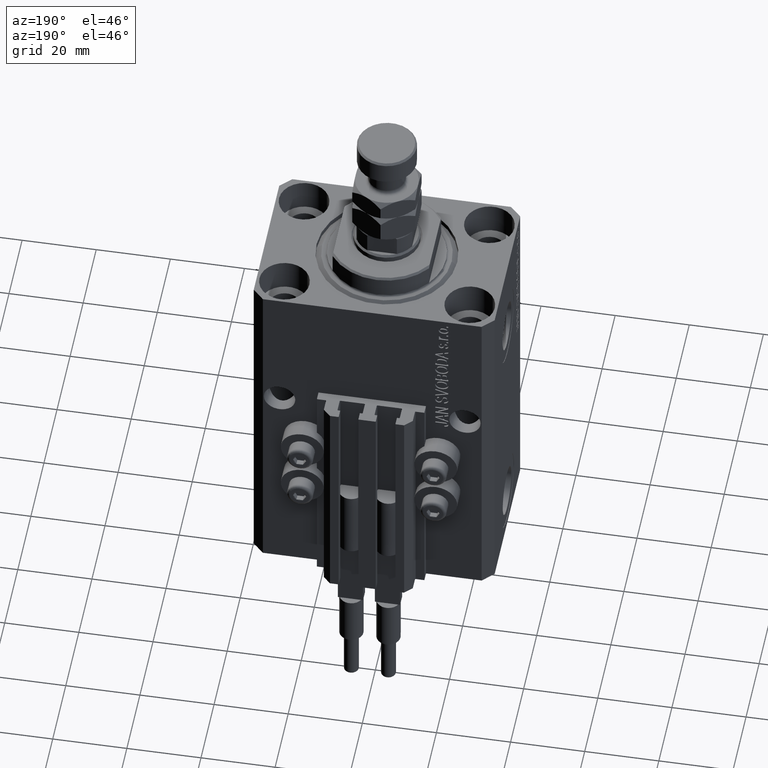
[diagram: clean part render]
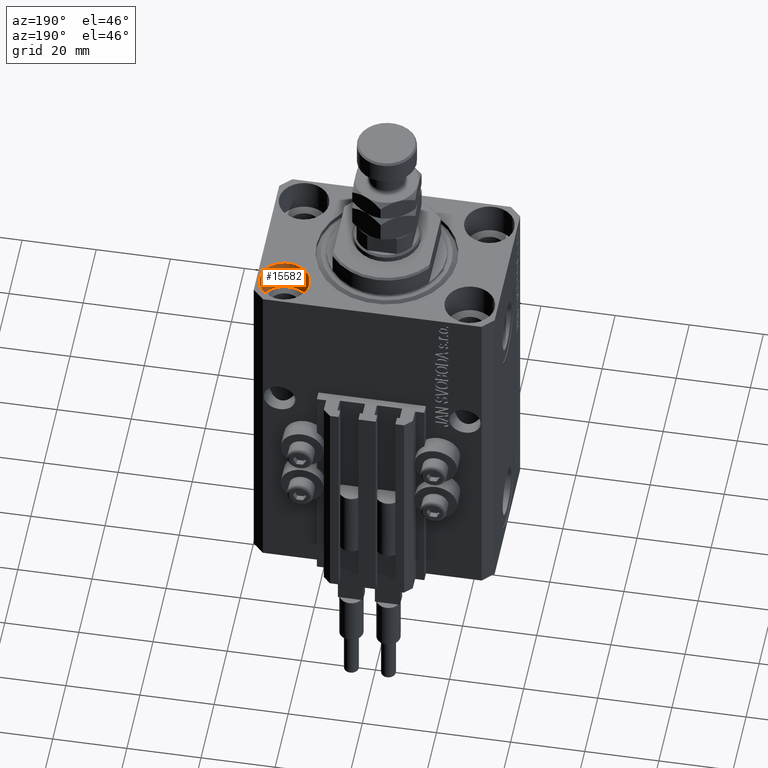
[diagram: same view with one face highlighted and labeled with its STEP entity id]
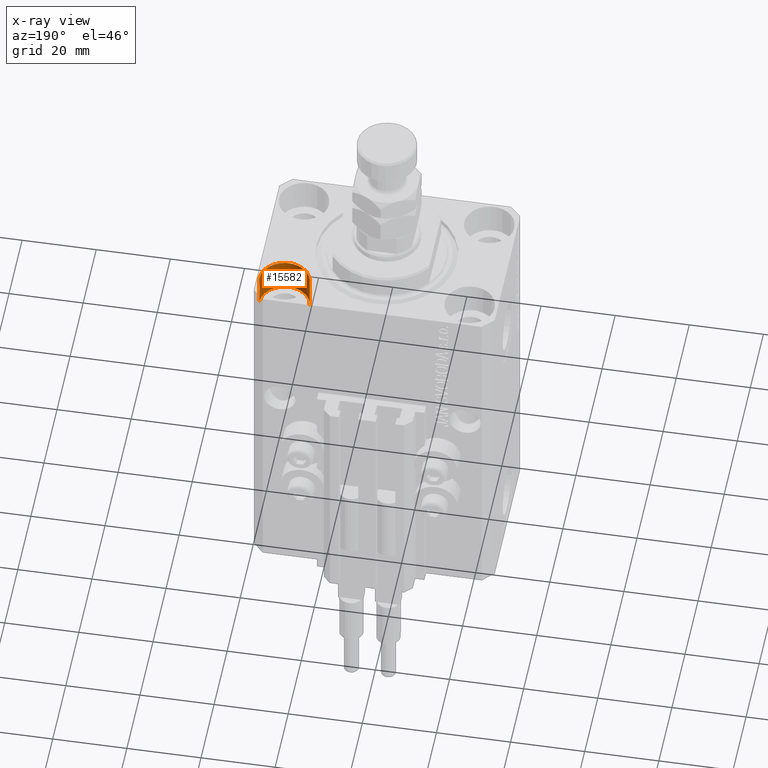
[diagram: x-ray of the same camera — body ghosted, the highlighted face saturated]
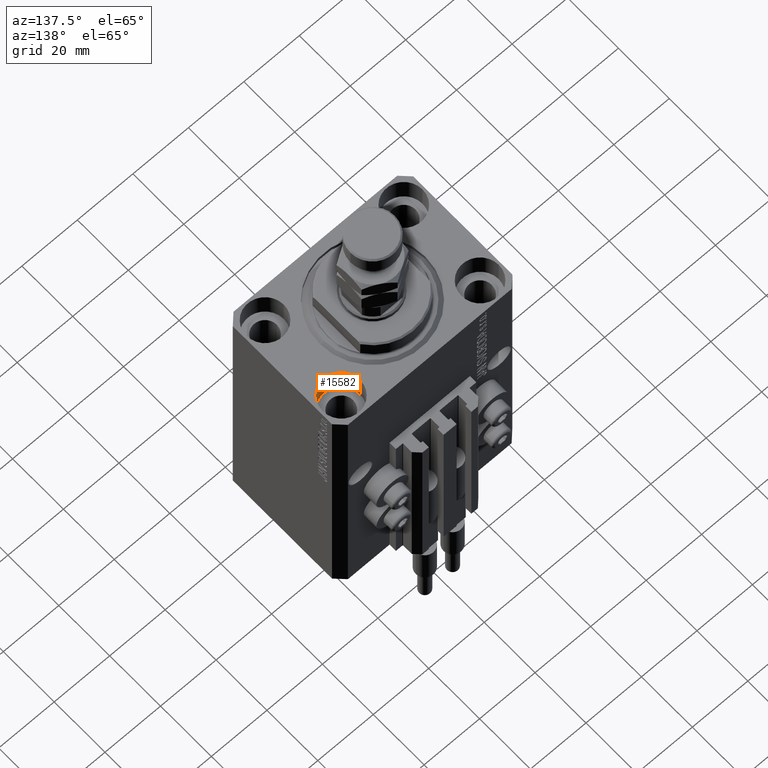
[diagram: same view with one face highlighted and labeled with its STEP entity id]
A machine part, auxiliary view. The second image highlights one B-rep face of the part: STEP entity #15582.
The next image is the same camera in x-ray: the body ghosted, the highlighted face saturated — about 0% of this face is hidden behind the body in this view.
A second angle (auxiliary view) of the same face is appended — the face is thin or edge-on in the first view.
In plain terms, the highlighted cylindrical surface (edge-blend (fillet) strip) has radius 6.75 mm, axis along (0, 0, 1).
Its self-contained STEP definition (entity closure, byte-faithful):
#314 = CARTESIAN_POINT ( 'NONE',  ( 18.25000000004154543, 15.00000000000000888, 0.000000000000000000 ) ) ;
#1966 = ORIENTED_EDGE ( 'NONE', *, *, #22709, .F. ) ;
#2781 = DIRECTION ( 'NONE',  ( -0.000000000000000000, -0.000000000000000000, 1.000000000000000000 ) ) ;
#4909 = LINE ( 'NONE', #35502, #39740 ) ;
#9178 = DIRECTION ( 'NONE',  ( -0.000000000000000000, -0.000000000000000000, 1.000000000000000000 ) ) ;
#10421 = DIRECTION ( 'NONE',  ( -0.000000000000000000, -0.000000000000000000, 1.000000000000000000 ) ) ;
#10676 = CARTESIAN_POINT ( 'NONE',  ( 31.74999999995845101, 15.00000000000000888, -9.000000000000000000 ) ) ;
#12034 = AXIS2_PLACEMENT_3D ( 'NONE', #15967, #46842, #12466 ) ;
#12466 = DIRECTION ( 'NONE',  ( 1.000000000000000000, 0.000000000000000000, 0.000000000000000000 ) ) ;
#15582 = ADVANCED_FACE ( 'NONE', ( #17824 ), #33622, .F. ) ;
#15967 = CARTESIAN_POINT ( 'NONE',  ( 24.99999999999999645, 15.00000000000000888, 0.000000000000000000 ) ) ;
#17272 = VERTEX_POINT ( 'NONE', #38378 ) ;
#17301 = DIRECTION ( 'NONE',  ( 0.000000000000000000, 0.000000000000000000, 1.000000000000000000 ) ) ;
#17824 = FACE_OUTER_BOUND ( 'NONE', #20065, .T. ) ;
#18022 = VECTOR ( 'NONE', #10421, 1000.000000000000000 ) ;
#18079 = CIRCLE ( 'NONE', #23673, 6.749999999958452790 ) ;
#18309 = DIRECTION ( 'NONE',  ( 1.000000000000000000, 0.000000000000000000, 0.000000000000000000 ) ) ;
#20065 = EDGE_LOOP ( 'NONE', ( #25258, #45993, #49542, #1966 ) ) ;
#20944 = AXIS2_PLACEMENT_3D ( 'NONE', #49211, #2781, #26338 ) ;
#22709 = EDGE_CURVE ( 'NONE', #17272, #37358, #44799, .T. ) ;
#23673 = AXIS2_PLACEMENT_3D ( 'NONE', #25844, #17301, #18309 ) ;
#25258 = ORIENTED_EDGE ( 'NONE', *, *, #34668, .F. ) ;
#25844 = CARTESIAN_POINT ( 'NONE',  ( 24.99999999999999645, 15.00000000000000888, -9.000000000000000000 ) ) ;
#26338 = DIRECTION ( 'NONE',  ( 1.000000000000000000, 0.000000000000000000, 0.000000000000000000 ) ) ;
#26627 = EDGE_CURVE ( 'NONE', #42353, #41189, #4909, .T. ) ;
#33622 = CYLINDRICAL_SURFACE ( 'NONE', #20944, 6.749999999958452790 ) ;
#33644 = CIRCLE ( 'NONE', #12034, 6.749999999958452790 ) ;
#34668 = EDGE_CURVE ( 'NONE', #42353, #17272, #18079, .T. ) ;
#35502 = CARTESIAN_POINT ( 'NONE',  ( 18.25000000004154543, 15.00000000000000888, -9.000000000000000000 ) ) ;
#37358 = VERTEX_POINT ( 'NONE', #49001 ) ;
#38378 = CARTESIAN_POINT ( 'NONE',  ( 31.74999999995845101, 15.00000000000000888, -9.000000000000000000 ) ) ;
#39740 = VECTOR ( 'NONE', #9178, 1000.000000000000000 ) ;
#41189 = VERTEX_POINT ( 'NONE', #314 ) ;
#42353 = VERTEX_POINT ( 'NONE', #46685 ) ;
#44799 = LINE ( 'NONE', #10676, #18022 ) ;
#45691 = EDGE_CURVE ( 'NONE', #41189, #37358, #33644, .T. ) ;
#45993 = ORIENTED_EDGE ( 'NONE', *, *, #26627, .T. ) ;
#46685 = CARTESIAN_POINT ( 'NONE',  ( 18.25000000004154543, 15.00000000000000888, -9.000000000000000000 ) ) ;
#46842 = DIRECTION ( 'NONE',  ( 0.000000000000000000, 0.000000000000000000, 1.000000000000000000 ) ) ;
#49001 = CARTESIAN_POINT ( 'NONE',  ( 31.74999999995845101, 15.00000000000000888, 0.000000000000000000 ) ) ;
#49211 = CARTESIAN_POINT ( 'NONE',  ( 24.99999999999999645, 15.00000000000000888, -9.000000000000000000 ) ) ;
#49542 = ORIENTED_EDGE ( 'NONE', *, *, #45691, .T. ) ;